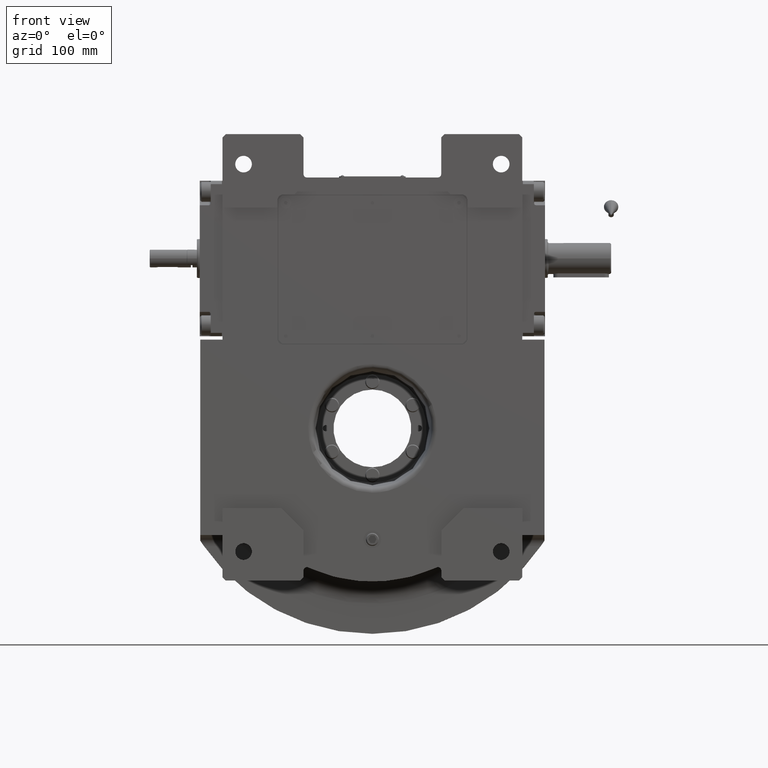
[diagram: clean part render]
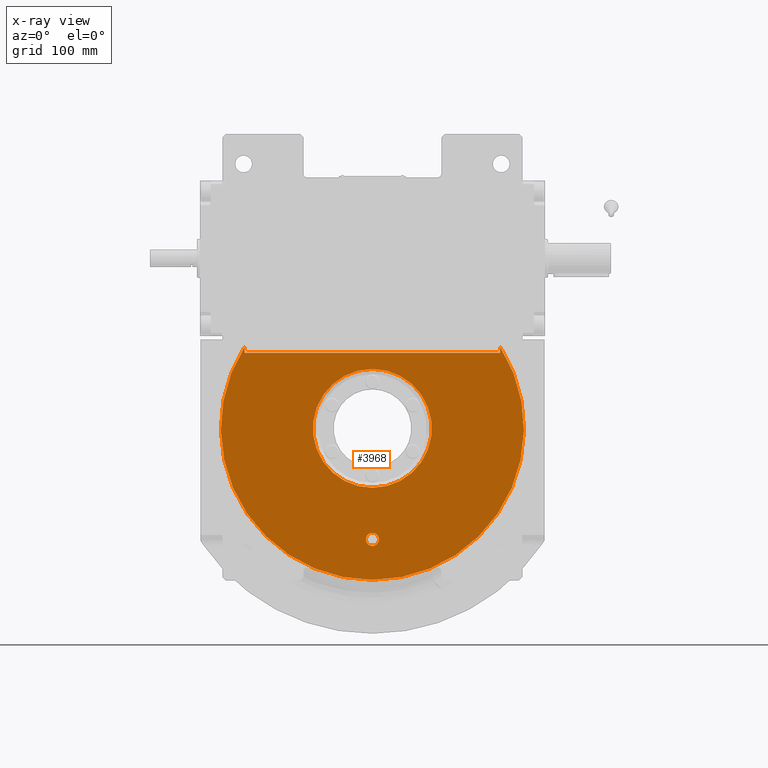
[diagram: x-ray — body ghosted, one internal face saturated and labeled with its STEP entity id]
A machine part, front view, then the same camera in x-ray: the body is ghosted and one INTERNAL B-rep face — a face not visible from any outside direction — is saturated and labeled: STEP entity #3968.
In plain terms, the highlighted planar face has unit normal (0, -1, 0).
Its self-contained STEP definition (entity closure, byte-faithful):
#906 = EDGE_LOOP ( 'NONE', ( #29771, #8319 ) ) ;
#972 = VERTEX_POINT ( 'NONE', #30712 ) ;
#1028 = DIRECTION ( 'NONE',  ( 0.000000000000000000, -1.000000000000000000, 0.000000000000000000 ) ) ;
#1232 = VERTEX_POINT ( 'NONE', #34168 ) ;
#1258 = DIRECTION ( 'NONE',  ( 0.000000000000000000, 0.000000000000000000, 1.000000000000000000 ) ) ;
#2686 = VECTOR ( 'NONE', #35435, 1000.000000000000000 ) ;
#3009 = CARTESIAN_POINT ( 'NONE',  ( 115.0000000000000000, -63.00000000000000000, 73.53400573884168523 ) ) ;
#3384 = CARTESIAN_POINT ( 'NONE',  ( 0.000000000000000000, -63.00000000000000000, -136.5000000000000000 ) ) ;
#3968 = ADVANCED_FACE ( 'NONE', ( #34207, #8559, #55968 ), #7863, .F. ) ;
#4609 = CIRCLE ( 'NONE', #50602, 53.50000000000000000 ) ;
#5537 = DIRECTION ( 'NONE',  ( 0.000000000000000000, 0.000000000000000000, 1.000000000000000000 ) ) ;
#5663 = CARTESIAN_POINT ( 'NONE',  ( 0.000000000000000000, -63.00000000000000000, -53.50000000000000000 ) ) ;
#7863 = PLANE ( 'NONE',  #36730 ) ;
#8319 = ORIENTED_EDGE ( 'NONE', *, *, #60287, .T. ) ;
#8385 = ORIENTED_EDGE ( 'NONE', *, *, #34560, .F. ) ;
#8559 = FACE_BOUND ( 'NONE', #906, .T. ) ;
#8736 = AXIS2_PLACEMENT_3D ( 'NONE', #24432, #13564, #19510 ) ;
#10816 = LINE ( 'NONE', #53626, #64350 ) ;
#11075 = AXIS2_PLACEMENT_3D ( 'NONE', #54421, #1028, #11248 ) ;
#11248 = DIRECTION ( 'NONE',  ( -1.000000000000000000, 0.000000000000000000, 0.000000000000000000 ) ) ;
#13116 = DIRECTION ( 'NONE',  ( 0.000000000000000000, -1.000000000000000000, 1.836909530733564901E-16 ) ) ;
#13564 = DIRECTION ( 'NONE',  ( 0.000000000000000000, 1.000000000000000000, 0.000000000000000000 ) ) ;
#13778 = DIRECTION ( 'NONE',  ( -1.209434443846979996E-15, -1.000000000000000000, 1.209434443846979996E-15 ) ) ;
#14083 = ORIENTED_EDGE ( 'NONE', *, *, #57936, .F. ) ;
#15961 = CARTESIAN_POINT ( 'NONE',  ( 6.551860375438339893E-15, -63.00000000000000000, 53.50000000000000000 ) ) ;
#16328 = EDGE_CURVE ( 'NONE', #45983, #67179, #32907, .T. ) ;
#16439 = EDGE_CURVE ( 'NONE', #28894, #972, #27949, .T. ) ;
#16651 = VERTEX_POINT ( 'NONE', #15961 ) ;
#17406 = CARTESIAN_POINT ( 'NONE',  ( 0.000000000000000000, -63.00000000000000000, 0.000000000000000000 ) ) ;
#17608 = EDGE_LOOP ( 'NONE', ( #8385, #36433, #65885, #61760, #22166 ) ) ;
#19510 = DIRECTION ( 'NONE',  ( 0.000000000000000000, 0.000000000000000000, 1.000000000000000000 ) ) ;
#22166 = ORIENTED_EDGE ( 'NONE', *, *, #16439, .T. ) ;
#22699 = CARTESIAN_POINT ( 'NONE',  ( 115.0000000000000000, -63.00000000000000000, 0.000000000000000000 ) ) ;
#24300 = CARTESIAN_POINT ( 'NONE',  ( 0.000000000000000000, -63.00000000000000000, -100.0000000000000000 ) ) ;
#24432 = CARTESIAN_POINT ( 'NONE',  ( 0.000000000000000000, -63.00000000000000000, 0.000000000000000000 ) ) ;
#25023 = CARTESIAN_POINT ( 'NONE',  ( 0.000000000000000000, -63.00000000000000000, 2.534751534906250014E-14 ) ) ;
#26910 = CIRCLE ( 'NONE', #32545, 136.5000000000000000 ) ;
#27949 = CIRCLE ( 'NONE', #68373, 136.5000000000000000 ) ;
#28483 = EDGE_CURVE ( 'NONE', #45983, #39203, #41041, .T. ) ;
#28894 = VERTEX_POINT ( 'NONE', #3384 ) ;
#29175 = AXIS2_PLACEMENT_3D ( 'NONE', #24300, #13778, #45691 ) ;
#29771 = ORIENTED_EDGE ( 'NONE', *, *, #63503, .T. ) ;
#30712 = CARTESIAN_POINT ( 'NONE',  ( -115.0000000000000000, -63.00000000000000000, 73.53400573884168523 ) ) ;
#32376 = CIRCLE ( 'NONE', #11075, 5.875000000000000000 ) ;
#32545 = AXIS2_PLACEMENT_3D ( 'NONE', #17406, #44408, #38472 ) ;
#32907 = LINE ( 'NONE', #22699, #53692 ) ;
#34014 = DIRECTION ( 'NONE',  ( 0.000000000000000000, 1.000000000000000000, 0.000000000000000000 ) ) ;
#34168 = CARTESIAN_POINT ( 'NONE',  ( 5.875000000000000000, -63.00000000000000000, -100.0000000000000000 ) ) ;
#34207 = FACE_OUTER_BOUND ( 'NONE', #17608, .T. ) ;
#34445 = EDGE_LOOP ( 'NONE', ( #49924, #14083 ) ) ;
#34560 = EDGE_CURVE ( 'NONE', #39203, #972, #10816, .T. ) ;
#34951 = DIRECTION ( 'NONE',  ( 0.000000000000000000, 0.000000000000000000, 1.000000000000000000 ) ) ;
#35237 = DIRECTION ( 'NONE',  ( 0.000000000000000000, 1.836909530733564901E-16, 1.000000000000000000 ) ) ;
#35435 = DIRECTION ( 'NONE',  ( -1.000000000000000000, 0.000000000000000000, 0.000000000000000000 ) ) ;
#36433 = ORIENTED_EDGE ( 'NONE', *, *, #28483, .F. ) ;
#36730 = AXIS2_PLACEMENT_3D ( 'NONE', #25023, #13116, #35237 ) ;
#38472 = DIRECTION ( 'NONE',  ( 0.000000000000000000, 0.000000000000000000, 1.000000000000000000 ) ) ;
#39102 = CARTESIAN_POINT ( 'NONE',  ( 115.0000000000000000, -63.00000000000000000, 67.99999999999997158 ) ) ;
#39203 = VERTEX_POINT ( 'NONE', #44429 ) ;
#41041 = LINE ( 'NONE', #56526, #2686 ) ;
#42335 = CIRCLE ( 'NONE', #8736, 53.50000000000000000 ) ;
#43036 = VERTEX_POINT ( 'NONE', #5663 ) ;
#44408 = DIRECTION ( 'NONE',  ( 0.000000000000000000, 1.000000000000000000, 0.000000000000000000 ) ) ;
#44429 = CARTESIAN_POINT ( 'NONE',  ( -115.0000000000000000, -63.00000000000000000, 67.99999999999997158 ) ) ;
#44539 = CARTESIAN_POINT ( 'NONE',  ( -5.875000000000000000, -63.00000000000000000, -100.0000000000000000 ) ) ;
#44842 = DIRECTION ( 'NONE',  ( 0.000000000000000000, 0.000000000000000000, 1.000000000000000000 ) ) ;
#45465 = DIRECTION ( 'NONE',  ( 0.000000000000000000, 1.000000000000000000, 0.000000000000000000 ) ) ;
#45691 = DIRECTION ( 'NONE',  ( 1.000000000000000000, -2.362176648138630895E-15, 0.000000000000000000 ) ) ;
#45983 = VERTEX_POINT ( 'NONE', #39102 ) ;
#49924 = ORIENTED_EDGE ( 'NONE', *, *, #64450, .F. ) ;
#50602 = AXIS2_PLACEMENT_3D ( 'NONE', #67343, #34014, #44842 ) ;
#53626 = CARTESIAN_POINT ( 'NONE',  ( -115.0000000000000000, -63.00000000000000000, 0.000000000000000000 ) ) ;
#53692 = VECTOR ( 'NONE', #1258, 1000.000000000000000 ) ;
#54421 = CARTESIAN_POINT ( 'NONE',  ( 0.000000000000000000, -63.00000000000000000, -100.0000000000000000 ) ) ;
#55968 = FACE_BOUND ( 'NONE', #34445, .T. ) ;
#56526 = CARTESIAN_POINT ( 'NONE',  ( 0.000000000000000000, -62.99999999999998579, 67.99999999999997158 ) ) ;
#57936 = EDGE_CURVE ( 'NONE', #16651, #43036, #42335, .T. ) ;
#60287 = EDGE_CURVE ( 'NONE', #66683, #1232, #32376, .T. ) ;
#61760 = ORIENTED_EDGE ( 'NONE', *, *, #62997, .T. ) ;
#62015 = CARTESIAN_POINT ( 'NONE',  ( 0.000000000000000000, -63.00000000000000000, 0.000000000000000000 ) ) ;
#62997 = EDGE_CURVE ( 'NONE', #67179, #28894, #26910, .T. ) ;
#63503 = EDGE_CURVE ( 'NONE', #1232, #66683, #63996, .T. ) ;
#63996 = CIRCLE ( 'NONE', #29175, 5.875000000000000000 ) ;
#64350 = VECTOR ( 'NONE', #5537, 1000.000000000000000 ) ;
#64450 = EDGE_CURVE ( 'NONE', #43036, #16651, #4609, .T. ) ;
#65885 = ORIENTED_EDGE ( 'NONE', *, *, #16328, .T. ) ;
#66683 = VERTEX_POINT ( 'NONE', #44539 ) ;
#67179 = VERTEX_POINT ( 'NONE', #3009 ) ;
#67343 = CARTESIAN_POINT ( 'NONE',  ( 0.000000000000000000, -63.00000000000000000, 0.000000000000000000 ) ) ;
#68373 = AXIS2_PLACEMENT_3D ( 'NONE', #62015, #45465, #34951 ) ;